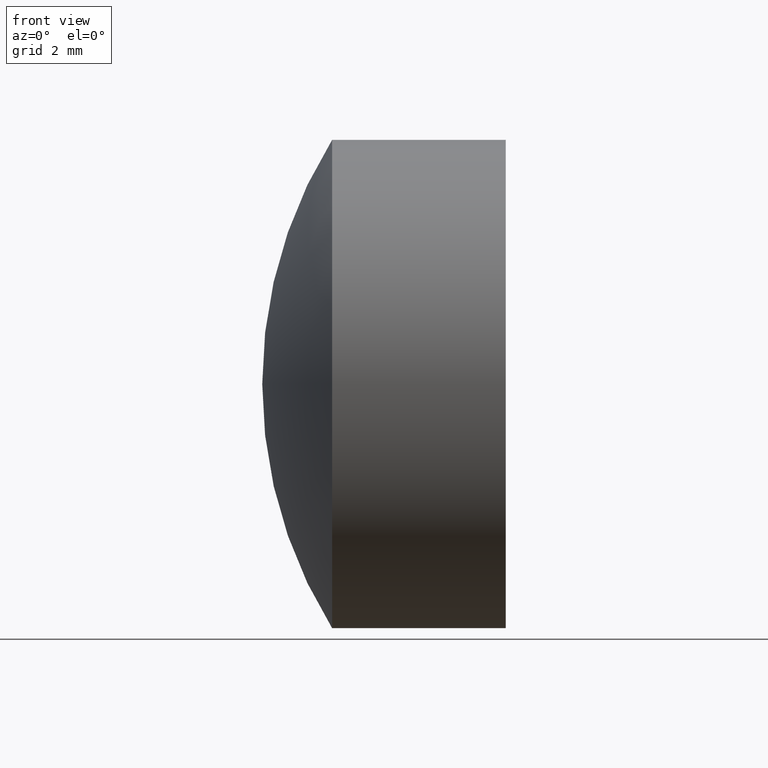
[diagram: clean part render]
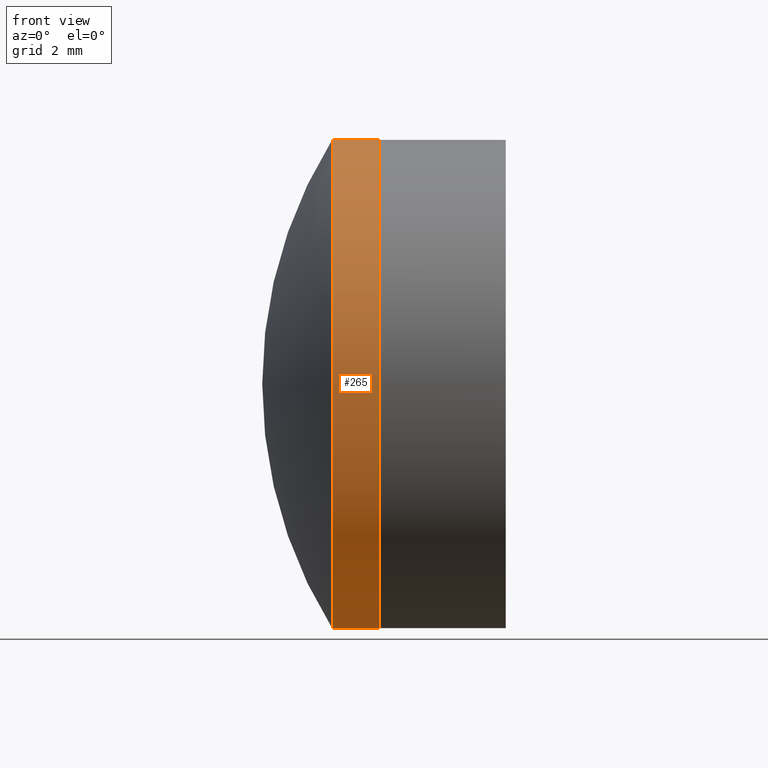
[diagram: same view with one face highlighted and labeled with its STEP entity id]
A machine part, front view. The second image highlights one B-rep face of the part: STEP entity #265.
In plain terms, the highlighted cylindrical surface (partial cylindrical patch) has radius 6.35 mm, axis along (-1, -0, -0).
Its self-contained STEP definition (entity closure, byte-faithful):
#10 = EDGE_CURVE ( 'NONE', #137, #84, #11, .T. ) ;
#11 = CIRCLE ( 'NONE', #161, 6.350000000000004100 ) ;
#17 = CIRCLE ( 'NONE', #332, 6.350000000000004100 ) ;
#21 = DIRECTION ( 'NONE',  ( 0.0000000000000000000, 0.0000000000000000000, 1.000000000000000000 ) ) ;
#25 = DIRECTION ( 'NONE',  ( 0.0000000000000000000, 0.0000000000000000000, 1.000000000000000000 ) ) ;
#54 = VECTOR ( 'NONE', #269, 1000.000000000000000 ) ;
#62 = LINE ( 'NONE', #339, #54 ) ;
#68 = LINE ( 'NONE', #205, #105 ) ;
#84 = VERTEX_POINT ( 'NONE', #153 ) ;
#89 = EDGE_CURVE ( 'NONE', #171, #137, #62, .T. ) ;
#90 = DIRECTION ( 'NONE',  ( -1.000000000000000000, -0.0000000000000000000, -0.0000000000000000000 ) ) ;
#100 = FACE_OUTER_BOUND ( 'NONE', #152, .T. ) ;
#105 = VECTOR ( 'NONE', #346, 1000.000000000000000 ) ;
#108 = CYLINDRICAL_SURFACE ( 'NONE', #248, 6.350000000000004100 ) ;
#115 = EDGE_CURVE ( 'NONE', #303, #84, #68, .T. ) ;
#123 = DIRECTION ( 'NONE',  ( -1.000000000000000000, -0.0000000000000000000, -0.0000000000000000000 ) ) ;
#126 = CARTESIAN_POINT ( 'NONE',  ( 23.56072451241536600, 0.0000000000000000000, 0.0000000000000000000 ) ) ;
#137 = VERTEX_POINT ( 'NONE', #292 ) ;
#152 = EDGE_LOOP ( 'NONE', ( #219, #233, #191, #232 ) ) ;
#153 = CARTESIAN_POINT ( 'NONE',  ( 22.34371029263723700, -7.776507174585690200E-016, 6.350000000000005000 ) ) ;
#161 = AXIS2_PLACEMENT_3D ( 'NONE', #193, #283, #213 ) ;
#171 = VERTEX_POINT ( 'NONE', #333 ) ;
#191 = ORIENTED_EDGE ( 'NONE', *, *, #115, .T. ) ;
#193 = CARTESIAN_POINT ( 'NONE',  ( 22.34371029263723300, 0.0000000000000000000, 0.0000000000000000000 ) ) ;
#205 = CARTESIAN_POINT ( 'NONE',  ( -0.8160621761658039000, 0.0000000000000000000, 6.350000000000004100 ) ) ;
#213 = DIRECTION ( 'NONE',  ( 0.0000000000000000000, 0.0000000000000000000, 1.000000000000000000 ) ) ;
#219 = ORIENTED_EDGE ( 'NONE', *, *, #89, .F. ) ;
#232 = ORIENTED_EDGE ( 'NONE', *, *, #10, .F. ) ;
#233 = ORIENTED_EDGE ( 'NONE', *, *, #251, .T. ) ;
#248 = AXIS2_PLACEMENT_3D ( 'NONE', #310, #123, #25 ) ;
#251 = EDGE_CURVE ( 'NONE', #171, #303, #17, .T. ) ;
#265 = ADVANCED_FACE ( 'NONE', ( #100 ), #108, .T. ) ;
#266 = CARTESIAN_POINT ( 'NONE',  ( 23.56072451241536600, 0.0000000000000000000, 6.350000000000004100 ) ) ;
#269 = DIRECTION ( 'NONE',  ( -1.000000000000000000, -0.0000000000000000000, -0.0000000000000000000 ) ) ;
#283 = DIRECTION ( 'NONE',  ( -1.000000000000000000, -0.0000000000000000000, -0.0000000000000000000 ) ) ;
#292 = CARTESIAN_POINT ( 'NONE',  ( 22.34371029263723700, 0.0000000000000000000, -6.349999999999997900 ) ) ;
#303 = VERTEX_POINT ( 'NONE', #266 ) ;
#310 = CARTESIAN_POINT ( 'NONE',  ( -0.8160621761658039000, 0.0000000000000000000, 0.0000000000000000000 ) ) ;
#332 = AXIS2_PLACEMENT_3D ( 'NONE', #126, #90, #21 ) ;
#333 = CARTESIAN_POINT ( 'NONE',  ( 23.56072451241536600, 7.776507174585697100E-016, -6.350000000000004100 ) ) ;
#339 = CARTESIAN_POINT ( 'NONE',  ( -0.8160621761658039000, 7.776507174585697100E-016, -6.350000000000004100 ) ) ;
#346 = DIRECTION ( 'NONE',  ( -1.000000000000000000, -0.0000000000000000000, -0.0000000000000000000 ) ) ;